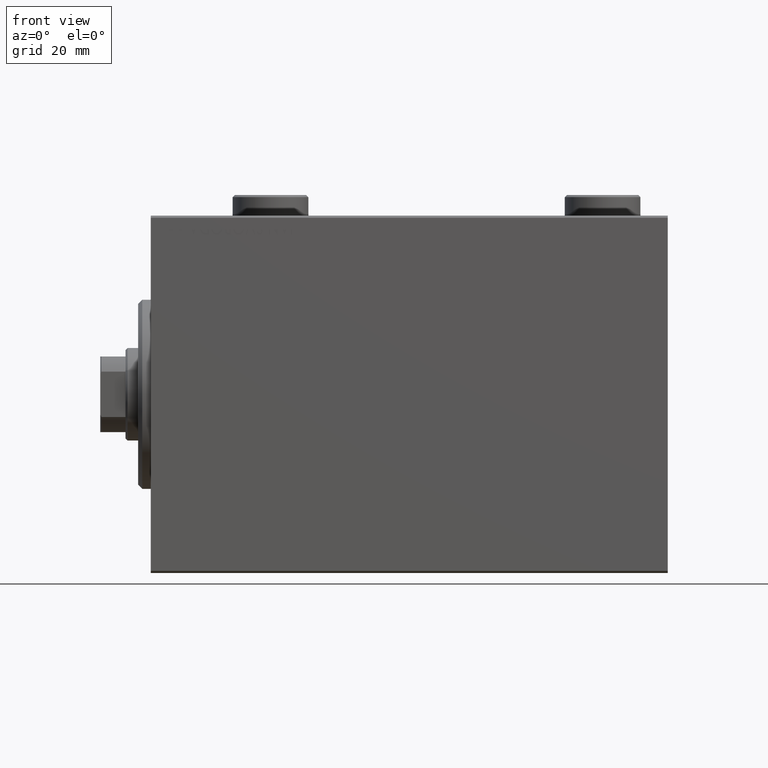
[diagram: clean part render]
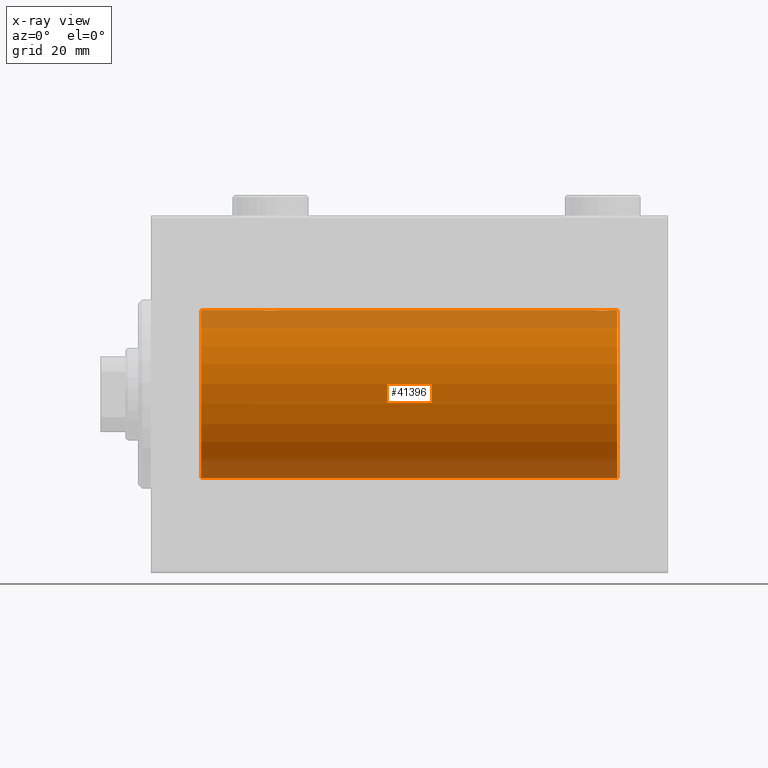
[diagram: x-ray — body ghosted, one internal face saturated and labeled with its STEP entity id]
A machine part, front view, then the same camera in x-ray: the body is ghosted and one INTERNAL B-rep face — a face not visible from any outside direction — is saturated and labeled: STEP entity #41396.
In plain terms, the highlighted cylindrical surface (partial cylindrical patch) has radius 20 mm, axis along (-1, -0, -0).
Its self-contained STEP definition (entity closure, byte-faithful):
#56 = CARTESIAN_POINT ( 'NONE',  ( 111.0000000000000000, 0.000000000000000000, 20.00000000000000000 ) ) ;
#267 = CARTESIAN_POINT ( 'NONE',  ( 30.24686976303072328, -1.008108445278687926, 19.97602680192586888 ) ) ;
#375 = ORIENTED_EDGE ( 'NONE', *, *, #854, .T. ) ;
#491 = EDGE_CURVE ( 'NONE', #2459, #32304, #43767, .T. ) ;
#728 = CARTESIAN_POINT ( 'NONE',  ( 30.49999999999999289, -0.2644051013330969702, 20.00000000000000711 ) ) ;
#854 = EDGE_CURVE ( 'NONE', #8564, #12379, #29098, .T. ) ;
#988 = CARTESIAN_POINT ( 'NONE',  ( 107.2364185590858483, -1.986835489085811979, 19.90108393514801222 ) ) ;
#1221 = CARTESIAN_POINT ( 'NONE',  ( 109.5000000000000284, -0.2644051013330989686, 20.00000000000000000 ) ) ;
#1376 = DIRECTION ( 'NONE',  ( -1.000000000000000000, -0.000000000000000000, -0.000000000000000000 ) ) ;
#2459 = VERTEX_POINT ( 'NONE', #56 ) ;
#2465 = CARTESIAN_POINT ( 'NONE',  ( 30.50000000000000000, 2.449293582768389958E-15, -20.00000000000000000 ) ) ;
#2564 = CARTESIAN_POINT ( 'NONE',  ( 111.0000000000000000, 0.000000000000000000, 0.000000000000000000 ) ) ;
#2623 = CARTESIAN_POINT ( 'NONE',  ( 29.50067219139244656, -1.736582545981375292, 19.92459705242981371 ) ) ;
#2887 = CARTESIAN_POINT ( 'NONE',  ( 30.50000000000000000, -4.014971335008767791E-15, 20.00000000000000000 ) ) ;
#2926 = CARTESIAN_POINT ( 'NONE',  ( 29.14630673924643744, -1.897222639860594029, -19.90987429971496780 ) ) ;
#2941 = VECTOR ( 'NONE', #35464, 1000.000000000000000 ) ;
#2988 = CARTESIAN_POINT ( 'NONE',  ( 30.50000000000000000, 2.449293582768389958E-15, -20.00000000000000000 ) ) ;
#3144 = CARTESIAN_POINT ( 'NONE',  ( 27.85651471266959334, -1.898187925611338533, -19.90978194174746818 ) ) ;
#3371 = CARTESIAN_POINT ( 'NONE',  ( 28.23922743968432059, -1.987205673487808966, -19.90104673894211018 ) ) ;
#3599 = CARTESIAN_POINT ( 'NONE',  ( 105.5000000000000000, -1.207436508668459186E-14, -20.00000000000000000 ) ) ;
#3603 = CARTESIAN_POINT ( 'NONE',  ( 27.61420923329272981, -1.797933656607917596, -19.91908554465558367 ) ) ;
#3737 = DIRECTION ( 'NONE',  ( -1.000000000000000000, -0.000000000000000000, -0.000000000000000000 ) ) ;
#3978 = CARTESIAN_POINT ( 'NONE',  ( 107.3694112828916474, -2.000100592782561471, -19.89973863218035888 ) ) ;
#4125 = ORIENTED_EDGE ( 'NONE', *, *, #12896, .F. ) ;
#4165 = VERTEX_POINT ( 'NONE', #2887 ) ;
#4207 = CARTESIAN_POINT ( 'NONE',  ( 107.2392274396843277, -1.987205673487818514, -19.90104673894210663 ) ) ;
#4217 = CARTESIAN_POINT ( 'NONE',  ( 111.0000000000000000, 2.449293598294706513E-15, -20.00000000000000000 ) ) ;
#4277 = B_SPLINE_CURVE_WITH_KNOTS ( 'NONE', 3,
 ( #20565, #27920, #17108, #12990, #31163, #13437, #30940, #41988, #20111, #16889, #34166, #10433, #35062, #45223, #13658, #37622, #37852, #6079, #2623, #16662, #30714, #41319, #267, #14325, #728, #7885 ),
 .UNSPECIFIED., .F., .F.,
 ( 4, 2, 2, 2, 2, 2, 2, 2, 2, 2, 2, 2, 4 ),
 ( 0.006256819553329811059, 0.007038738568778783733, 0.007820657584227756406, 0.008211617091952238406, 0.008602576599676722141, 0.008993536107401204141, 0.009384495615125686141, 0.009775455122850168141, 0.01016641463057465014, 0.01055737413829913214, 0.01094833364602361414, 0.01173025266147257814, 0.01251217167692154214 ),
 .UNSPECIFIED. ) ;
#4469 = CARTESIAN_POINT ( 'NONE',  ( 107.3663480385754809, -1.999898234284059884, 19.89975896996865501 ) ) ;
#4666 = LINE ( 'NONE', #11116, #37238 ) ;
#5477 = CARTESIAN_POINT ( 'NONE',  ( 30.09941524884030173, -1.228758402364235502, -19.96307487248084911 ) ) ;
#5802 = DIRECTION ( 'NONE',  ( -1.000000000000000000, -0.000000000000000000, -0.000000000000000000 ) ) ;
#6079 = CARTESIAN_POINT ( 'NONE',  ( 29.38579076670729151, -1.797933656607919817, 19.91908554465558367 ) ) ;
#6432 = CARTESIAN_POINT ( 'NONE',  ( 26.50000000000000355, -3.809869420541414000E-15, -20.00000000000000000 ) ) ;
#6825 = CARTESIAN_POINT ( 'NONE',  ( 28.36941128289166159, -2.000100592782553921, -19.89973863218036598 ) ) ;
#7049 = CARTESIAN_POINT ( 'NONE',  ( 27.17903093152710525, -1.507328959728492457, -19.94333197382385592 ) ) ;
#7203 = CARTESIAN_POINT ( 'NONE',  ( 109.0994152488403017, -1.228758402364235502, -19.96307487248084556 ) ) ;
#7455 = CARTESIAN_POINT ( 'NONE',  ( 106.8536932607535448, -1.897222639860596916, 19.90987429971497136 ) ) ;
#7657 = CARTESIAN_POINT ( 'NONE',  ( 107.6336519614244907, -1.999898234284069876, -19.89975896996865856 ) ) ;
#7666 = LINE ( 'NONE', #4217, #13104 ) ;
#7687 = CARTESIAN_POINT ( 'NONE',  ( 108.7180541947215033, -1.591668229360190034, 19.93669678979812332 ) ) ;
#7844 = VERTEX_POINT ( 'NONE', #3599 ) ;
#7885 = CARTESIAN_POINT ( 'NONE',  ( 30.50000000000000000, -4.014971335008767791E-15, 20.00000000000000000 ) ) ;
#7921 = CARTESIAN_POINT ( 'NONE',  ( 109.4467948419179777, -0.5270924491156657732, 19.99450181871976540 ) ) ;
#8151 = CARTESIAN_POINT ( 'NONE',  ( 105.5000000000000426, -0.2610801504281927699, 20.00000000000000000 ) ) ;
#8564 = VERTEX_POINT ( 'NONE', #2988 ) ;
#8939 = CARTESIAN_POINT ( 'NONE',  ( 30.44755062882508412, -0.5243189001514996228, -19.99457699142849876 ) ) ;
#9237 = VERTEX_POINT ( 'NONE', #23542 ) ;
#9931 = FACE_OUTER_BOUND ( 'NONE', #16829, .T. ) ;
#10433 = CARTESIAN_POINT ( 'NONE',  ( 28.23641855908585541, -1.986835489085814643, 19.90108393514801222 ) ) ;
#10500 = CARTESIAN_POINT ( 'NONE',  ( 26.50000000000000355, -3.809869420541414000E-15, -20.00000000000000000 ) ) ;
#10855 = ORIENTED_EDGE ( 'NONE', *, *, #43214, .T. ) ;
#11109 = CARTESIAN_POINT ( 'NONE',  ( 106.6142092332927120, -1.797933656607926922, -19.91908554465557657 ) ) ;
#11116 = CARTESIAN_POINT ( 'NONE',  ( 111.0000000000000000, 0.000000000000000000, 20.00000000000000000 ) ) ;
#11430 = CARTESIAN_POINT ( 'NONE',  ( 111.0000000000000000, 0.000000000000000000, 0.000000000000000000 ) ) ;
#11601 = CARTESIAN_POINT ( 'NONE',  ( 108.3857907667073022, -1.797933656607911379, 19.91908554465557657 ) ) ;
#11829 = LINE ( 'NONE', #18719, #14551 ) ;
#12379 = VERTEX_POINT ( 'NONE', #6432 ) ;
#12720 = ORIENTED_EDGE ( 'NONE', *, *, #37078, .T. ) ;
#12896 = EDGE_CURVE ( 'NONE', #17816, #41855, #11829, .T. ) ;
#12990 = CARTESIAN_POINT ( 'NONE',  ( 26.75174086539981033, -1.005710574260841206, 19.97614991974274190 ) ) ;
#13104 = VECTOR ( 'NONE', #18247, 1000.000000000000000 ) ;
#13437 = CARTESIAN_POINT ( 'NONE',  ( 27.17693331080528907, -1.505486175075773758, 19.94347168299867690 ) ) ;
#13658 = CARTESIAN_POINT ( 'NONE',  ( 28.76077256031567586, -1.987205673487810298, 19.90104673894210663 ) ) ;
#13730 = CARTESIAN_POINT ( 'NONE',  ( 28.63365196142448355, -1.999898234284062992, -19.89975896996866211 ) ) ;
#14099 = CARTESIAN_POINT ( 'NONE',  ( 107.7635814409142085, -1.986835489085821527, -19.90108393514801932 ) ) ;
#14325 = CARTESIAN_POINT ( 'NONE',  ( 30.44679484191797414, -0.5270924491156706582, 19.99450181871975829 ) ) ;
#14551 = VECTOR ( 'NONE', #32078, 1000.000000000000000 ) ;
#14555 = CARTESIAN_POINT ( 'NONE',  ( 105.9022530844526813, -1.230936344679284256, -19.96293863536309487 ) ) ;
#14781 = CARTESIAN_POINT ( 'NONE',  ( 105.7531302369692696, -1.008108445278694143, -19.97602680192586178 ) ) ;
#14812 = CARTESIAN_POINT ( 'NONE',  ( 106.1769333108053388, -1.505486175075770428, 19.94347168299868045 ) ) ;
#15006 = CARTESIAN_POINT ( 'NONE',  ( 105.5000000000000000, -0.2644051013331136235, -20.00000000000000000 ) ) ;
#15037 = CARTESIAN_POINT ( 'NONE',  ( 109.2468697630307162, -1.008108445278682153, 19.97602680192586533 ) ) ;
#16640 = ORIENTED_EDGE ( 'NONE', *, *, #23390, .T. ) ;
#16662 = CARTESIAN_POINT ( 'NONE',  ( 29.71805419472152110, -1.591668229360196252, 19.93669678979812332 ) ) ;
#16829 = EDGE_LOOP ( 'NONE', ( #21368, #12720, #16640, #45369, #375, #10855, #17694, #4125, #32863, #26663, #38652, #26646 ) ) ;
#16889 = CARTESIAN_POINT ( 'NONE',  ( 27.85369326075355545, -1.897222639860597360, 19.90987429971497491 ) ) ;
#16959 = CARTESIAN_POINT ( 'NONE',  ( 26.50000000000001066, -0.2644051013331030209, -20.00000000000000355 ) ) ;
#17108 = CARTESIAN_POINT ( 'NONE',  ( 26.55244937117492299, -0.5243189001515023984, 19.99457699142850586 ) ) ;
#17627 = CARTESIAN_POINT ( 'NONE',  ( 27.49932780860757475, -1.736582545981376180, -19.92459705242981371 ) ) ;
#17694 = ORIENTED_EDGE ( 'NONE', *, *, #37193, .T. ) ;
#17816 = VERTEX_POINT ( 'NONE', #19259 ) ;
#17883 = CARTESIAN_POINT ( 'NONE',  ( 109.5000000000000000, 9.933581297041049549E-16, 20.00000000000000000 ) ) ;
#18034 = CARTESIAN_POINT ( 'NONE',  ( 105.9005847511597125, -1.228758402364233948, 19.96307487248084911 ) ) ;
#18089 = B_SPLINE_CURVE_WITH_KNOTS ( 'NONE', 3,
 ( #39707, #8151, #39011, #36231, #18034, #14812, #42702, #21951, #28858, #7455, #36008, #988, #4469, #22175, #39471, #21714, #43156, #11601, #28404, #7687, #25395, #35777, #15037, #7921, #1221, #18488 ),
 .UNSPECIFIED., .F., .F.,
 ( 4, 2, 2, 2, 2, 2, 2, 2, 2, 2, 2, 2, 4 ),
 ( 0.006256819553329836213, 0.007038738568778807152, 0.007820657584227777223, 0.008211617091952262693, 0.008602576599676746427, 0.008993536107401231897, 0.009384495615125717366, 0.009775455122850201101, 0.01016641463057468657, 0.01055737413829917204, 0.01094833364602365577, 0.01173025266147262498, 0.01251217167692159418 ),
 .UNSPECIFIED. ) ;
#18247 = DIRECTION ( 'NONE',  ( -1.000000000000000000, -0.000000000000000000, -0.000000000000000000 ) ) ;
#18488 = CARTESIAN_POINT ( 'NONE',  ( 109.5000000000000000, 9.933581297041049549E-16, 20.00000000000000000 ) ) ;
#18692 = CARTESIAN_POINT ( 'NONE',  ( 106.9835146708109477, -1.936551476643014968, -19.90603968831098669 ) ) ;
#18719 = CARTESIAN_POINT ( 'NONE',  ( 111.0000000000000000, 0.000000000000000000, 20.00000000000000000 ) ) ;
#19259 = CARTESIAN_POINT ( 'NONE',  ( 26.50000000000000355, -1.552596590610734385E-23, 20.00000000000000000 ) ) ;
#19503 = CARTESIAN_POINT ( 'NONE',  ( 29.82306668919470383, -1.505486175075772870, -19.94347168299867334 ) ) ;
#20111 = CARTESIAN_POINT ( 'NONE',  ( 27.61170562792909422, -1.796691196322319994, 19.91919800395357143 ) ) ;
#20354 = CIRCLE ( 'NONE', #39499, 20.00000000000000000 ) ;
#20409 = CARTESIAN_POINT ( 'NONE',  ( 27.98351467081095123, -1.936551476643005198, -19.90603968831098314 ) ) ;
#20565 = CARTESIAN_POINT ( 'NONE',  ( 26.50000000000000355, -1.552596590610734385E-23, 20.00000000000000000 ) ) ;
#21077 = CARTESIAN_POINT ( 'NONE',  ( 26.75313023696928738, -1.008108445278687704, -19.97602680192586533 ) ) ;
#21235 = CARTESIAN_POINT ( 'NONE',  ( 108.7202894579446593, -1.589957321664212886, -19.93683391378736047 ) ) ;
#21368 = ORIENTED_EDGE ( 'NONE', *, *, #30052, .F. ) ;
#21453 = CARTESIAN_POINT ( 'NONE',  ( 109.5000000000000000, -0.2610801504281911600, -19.99999999999999645 ) ) ;
#21682 = CARTESIAN_POINT ( 'NONE',  ( 106.4993278086075463, -1.736582545981379289, -19.92459705242981016 ) ) ;
#21714 = CARTESIAN_POINT ( 'NONE',  ( 108.0164853291890665, -1.936551476643001646, 19.90603968831098669 ) ) ;
#21919 = CARTESIAN_POINT ( 'NONE',  ( 105.5000000000000000, -1.207436508668459186E-14, -20.00000000000000000 ) ) ;
#21928 = DIRECTION ( 'NONE',  ( -1.000000000000000000, -0.000000000000000000, -0.000000000000000000 ) ) ;
#21951 = CARTESIAN_POINT ( 'NONE',  ( 106.4969344366039792, -1.735203193119890352, 19.92471783160911158 ) ) ;
#22147 = CARTESIAN_POINT ( 'NONE',  ( 109.4475506288250983, -0.5243189001514979575, -19.99457699142850231 ) ) ;
#22175 = CARTESIAN_POINT ( 'NONE',  ( 107.6305887171083668, -2.000100592782551701, 19.89973863218036598 ) ) ;
#23351 = EDGE_CURVE ( 'NONE', #17816, #4165, #4277, .T. ) ;
#23390 = EDGE_CURVE ( 'NONE', #9237, #7844, #39423, .T. ) ;
#23542 = CARTESIAN_POINT ( 'NONE',  ( 109.5000000000000000, 2.449293582762473501E-15, -20.00000000000000000 ) ) ;
#24097 = VERTEX_POINT ( 'NONE', #30900 ) ;
#24312 = CARTESIAN_POINT ( 'NONE',  ( 29.50306556339602437, -1.735203193119894349, -19.92471783160910803 ) ) ;
#24916 = CARTESIAN_POINT ( 'NONE',  ( 106.8565147126695933, -1.898187925611348081, -19.90978194174746463 ) ) ;
#25136 = CARTESIAN_POINT ( 'NONE',  ( 108.5030655633960208, -1.735203193119900344, -19.92471783160911514 ) ) ;
#25395 = CARTESIAN_POINT ( 'NONE',  ( 108.8209690684728912, -1.507328959728487794, 19.94333197382385592 ) ) ;
#25458 = DIRECTION ( 'NONE',  ( -1.000000000000000000, 0.000000000000000000, 0.000000000000000000 ) ) ;
#26646 = ORIENTED_EDGE ( 'NONE', *, *, #491, .F. ) ;
#26663 = ORIENTED_EDGE ( 'NONE', *, *, #27592, .F. ) ;
#26902 = VERTEX_POINT ( 'NONE', #26921 ) ;
#26921 = CARTESIAN_POINT ( 'NONE',  ( 111.0000000000000000, 2.449293598294706513E-15, -20.00000000000000000 ) ) ;
#27320 = CARTESIAN_POINT ( 'NONE',  ( 29.72028945794465571, -1.589957321664208223, -19.93683391378736047 ) ) ;
#27592 = EDGE_CURVE ( 'NONE', #43856, #4165, #4666, .T. ) ;
#27768 = CARTESIAN_POINT ( 'NONE',  ( 29.38829437207091999, -1.796691196322316664, -19.91919800395357143 ) ) ;
#27882 = DIRECTION ( 'NONE',  ( -1.000000000000000000, 0.000000000000000000, 0.000000000000000000 ) ) ;
#27920 = CARTESIAN_POINT ( 'NONE',  ( 26.50000000000000711, -0.2610801504281929919, 20.00000000000000000 ) ) ;
#28140 = CARTESIAN_POINT ( 'NONE',  ( 109.5000000000000000, 2.449293582762473501E-15, -20.00000000000000000 ) ) ;
#28404 = CARTESIAN_POINT ( 'NONE',  ( 108.5006721913924395, -1.736582545981369741, 19.92459705242980661 ) ) ;
#28858 = CARTESIAN_POINT ( 'NONE',  ( 106.6117056279291120, -1.796691196322320438, 19.91919800395357143 ) ) ;
#29058 = CARTESIAN_POINT ( 'NONE',  ( 106.1790309315270804, -1.507328959728499118, -19.94333197382385947 ) ) ;
#29098 = B_SPLINE_CURVE_WITH_KNOTS ( 'NONE', 3,
 ( #2465, #40497, #8939, #37016, #5477, #19503, #27320, #24312, #27768, #2926, #38155, #45526, #13730, #6825, #3371, #20409, #3144, #3603, #17627, #35134, #7049, #42054, #21077, #38595, #16959, #10500 ),
 .UNSPECIFIED., .F., .F.,
 ( 4, 2, 2, 2, 2, 2, 2, 2, 2, 2, 2, 2, 4 ),
 ( 0.006256819553329842284, 0.007038738568778818427, 0.007820657584227792836, 0.008211617091952278305, 0.008602576599676762040, 0.008993536107401245774, 0.009384495615125729509, 0.009775455122850213244, 0.01016641463057469871, 0.01055737413829918071, 0.01094833364602366618, 0.01173025266147263365, 0.01251217167692159939 ),
 .UNSPECIFIED. ) ;
#29242 = CARTESIAN_POINT ( 'NONE',  ( 111.0000000000000000, 0.000000000000000000, 20.00000000000000000 ) ) ;
#30052 = EDGE_CURVE ( 'NONE', #26902, #2459, #20354, .T. ) ;
#30424 = VECTOR ( 'NONE', #1376, 1000.000000000000000 ) ;
#30714 = CARTESIAN_POINT ( 'NONE',  ( 29.82096906847289119, -1.507328959728493567, 19.94333197382385592 ) ) ;
#30900 = CARTESIAN_POINT ( 'NONE',  ( 11.99999999999999645, 2.449293598294706513E-15, -20.00000000000000000 ) ) ;
#30940 = CARTESIAN_POINT ( 'NONE',  ( 27.27971054205535850, -1.589957321664211998, 19.93683391378736047 ) ) ;
#31119 = CARTESIAN_POINT ( 'NONE',  ( 11.99999999999999645, 0.000000000000000000, 0.000000000000000000 ) ) ;
#31163 = CARTESIAN_POINT ( 'NONE',  ( 26.90058475115969827, -1.228758402364236391, 19.96307487248084556 ) ) ;
#31659 = VECTOR ( 'NONE', #3737, 1000.000000000000000 ) ;
#32054 = CARTESIAN_POINT ( 'NONE',  ( 106.2819458052784825, -1.591668229360199804, -19.93669678979812687 ) ) ;
#32078 = DIRECTION ( 'NONE',  ( -1.000000000000000000, -0.000000000000000000, -0.000000000000000000 ) ) ;
#32304 = VERTEX_POINT ( 'NONE', #17883 ) ;
#32863 = ORIENTED_EDGE ( 'NONE', *, *, #23351, .T. ) ;
#33888 = DIRECTION ( 'NONE',  ( 0.000000000000000000, 0.000000000000000000, 1.000000000000000000 ) ) ;
#33942 = CARTESIAN_POINT ( 'NONE',  ( 11.99999999999999645, 0.000000000000000000, 20.00000000000000000 ) ) ;
#34166 = CARTESIAN_POINT ( 'NONE',  ( 27.98076487864722495, -1.935816449315125087, 19.90611141657401362 ) ) ;
#35062 = CARTESIAN_POINT ( 'NONE',  ( 28.36634803857552001, -1.999898234284063436, 19.89975896996866211 ) ) ;
#35134 = CARTESIAN_POINT ( 'NONE',  ( 27.28194580527848601, -1.591668229360197140, -19.93669678979812332 ) ) ;
#35144 = AXIS2_PLACEMENT_3D ( 'NONE', #31119, #27882, #38485 ) ;
#35156 = CARTESIAN_POINT ( 'NONE',  ( 105.5000000000000000, -1.553188236289650144E-23, 20.00000000000000000 ) ) ;
#35464 = DIRECTION ( 'NONE',  ( -1.000000000000000000, -0.000000000000000000, -0.000000000000000000 ) ) ;
#35512 = CARTESIAN_POINT ( 'NONE',  ( 108.1463067392464268, -1.897222639860602245, -19.90987429971496425 ) ) ;
#35777 = CARTESIAN_POINT ( 'NONE',  ( 109.0977469155473187, -1.230936344679272931, 19.96293863536309132 ) ) ;
#36008 = CARTESIAN_POINT ( 'NONE',  ( 106.9807648786472498, -1.935816449315123533, 19.90611141657401717 ) ) ;
#36199 = CARTESIAN_POINT ( 'NONE',  ( 108.3882943720709591, -1.796691196322323769, -19.91919800395357498 ) ) ;
#36231 = CARTESIAN_POINT ( 'NONE',  ( 105.7517408653998388, -1.005710574260843426, 19.97614991974273835 ) ) ;
#36296 = DIRECTION ( 'NONE',  ( 0.000000000000000000, 0.000000000000000000, 1.000000000000000000 ) ) ;
#37016 = CARTESIAN_POINT ( 'NONE',  ( 30.24825913460018612, -1.005710574260838985, -19.97614991974274190 ) ) ;
#37078 = EDGE_CURVE ( 'NONE', #26902, #9237, #7666, .T. ) ;
#37115 = CYLINDRICAL_SURFACE ( 'NONE', #41187, 20.00000000000000000 ) ;
#37193 = EDGE_CURVE ( 'NONE', #24097, #41855, #39595, .T. ) ;
#37238 = VECTOR ( 'NONE', #21928, 1000.000000000000000 ) ;
#37622 = CARTESIAN_POINT ( 'NONE',  ( 29.01648532918905943, -1.936551476643006753, 19.90603968831098669 ) ) ;
#37852 = CARTESIAN_POINT ( 'NONE',  ( 29.14348528733041377, -1.898187925611340088, 19.90978194174746818 ) ) ;
#38065 = LINE ( 'NONE', #42427, #31659 ) ;
#38155 = CARTESIAN_POINT ( 'NONE',  ( 29.01923512135276795, -1.935816449315124643, -19.90611141657401717 ) ) ;
#38485 = DIRECTION ( 'NONE',  ( 0.000000000000000000, 0.000000000000000000, 1.000000000000000000 ) ) ;
#38595 = CARTESIAN_POINT ( 'NONE',  ( 26.55320515808203297, -0.5270924491156698810, -19.99450181871976184 ) ) ;
#38652 = ORIENTED_EDGE ( 'NONE', *, *, #43510, .T. ) ;
#38981 = CARTESIAN_POINT ( 'NONE',  ( 108.0192351213527786, -1.935816449315129306, -19.90611141657401006 ) ) ;
#39011 = CARTESIAN_POINT ( 'NONE',  ( 105.5524493711749159, -0.5243189001515050629, 19.99457699142850586 ) ) ;
#39208 = CARTESIAN_POINT ( 'NONE',  ( 109.2482591346001897, -1.005710574260839207, -19.97614991974273835 ) ) ;
#39423 = B_SPLINE_CURVE_WITH_KNOTS ( 'NONE', 3,
 ( #28140, #21453, #22147, #39208, #7203, #42215, #21235, #25136, #36199, #35512, #38981, #14099, #7657, #3978, #4207, #18692, #24916, #11109, #21682, #32054, #29058, #14555, #14781, #43127, #15006, #21919 ),
 .UNSPECIFIED., .F., .F.,
 ( 4, 2, 2, 2, 2, 2, 2, 2, 2, 2, 2, 2, 4 ),
 ( 0.006256819553329824070, 0.007038738568778772457, 0.007820657584227721712, 0.008211617091952210651, 0.008602576599676697855, 0.008993536107401188529, 0.009384495615125675733, 0.009775455122850164671, 0.01016641463057465361, 0.01055737413829914428, 0.01094833364602363149, 0.01173025266147260937, 0.01251217167692158724 ),
 .UNSPECIFIED. ) ;
#39471 = CARTESIAN_POINT ( 'NONE',  ( 107.7607725603156865, -1.987205673487806967, 19.90104673894211018 ) ) ;
#39499 = AXIS2_PLACEMENT_3D ( 'NONE', #11430, #25458, #36296 ) ;
#39595 = CIRCLE ( 'NONE', #35144, 20.00000000000000000 ) ;
#39707 = CARTESIAN_POINT ( 'NONE',  ( 105.5000000000000000, -1.553188236289650144E-23, 20.00000000000000000 ) ) ;
#40497 = CARTESIAN_POINT ( 'NONE',  ( 30.49999999999999645, -0.2610801504281900498, -19.99999999999999645 ) ) ;
#41187 = AXIS2_PLACEMENT_3D ( 'NONE', #2564, #5802, #33888 ) ;
#41319 = CARTESIAN_POINT ( 'NONE',  ( 30.09774691554730097, -1.230936344679278482, 19.96293863536309132 ) ) ;
#41396 = ADVANCED_FACE ( 'NONE', ( #9931 ), #37115, .F. ) ;
#41855 = VERTEX_POINT ( 'NONE', #33942 ) ;
#41943 = CARTESIAN_POINT ( 'NONE',  ( 111.0000000000000000, 2.449293598294706513E-15, -20.00000000000000000 ) ) ;
#41988 = CARTESIAN_POINT ( 'NONE',  ( 27.49693443660397918, -1.735203193119897902, 19.92471783160911158 ) ) ;
#42054 = CARTESIAN_POINT ( 'NONE',  ( 26.90225308445269903, -1.230936344679278260, -19.96293863536309132 ) ) ;
#42215 = CARTESIAN_POINT ( 'NONE',  ( 108.8230666891947180, -1.505486175075774646, -19.94347168299868045 ) ) ;
#42378 = EDGE_CURVE ( 'NONE', #7844, #8564, #42394, .T. ) ;
#42394 = LINE ( 'NONE', #41943, #2941 ) ;
#42427 = CARTESIAN_POINT ( 'NONE',  ( 111.0000000000000000, 2.449293598294706513E-15, -20.00000000000000000 ) ) ;
#42702 = CARTESIAN_POINT ( 'NONE',  ( 106.2797105420553692, -1.589957321664204448, 19.93683391378736403 ) ) ;
#43127 = CARTESIAN_POINT ( 'NONE',  ( 105.5532051580820649, -0.5270924491156777636, -19.99450181871976540 ) ) ;
#43156 = CARTESIAN_POINT ( 'NONE',  ( 108.1434852873303925, -1.898187925611333871, 19.90978194174746463 ) ) ;
#43214 = EDGE_CURVE ( 'NONE', #12379, #24097, #38065, .T. ) ;
#43510 = EDGE_CURVE ( 'NONE', #43856, #32304, #18089, .T. ) ;
#43767 = LINE ( 'NONE', #29242, #30424 ) ;
#43856 = VERTEX_POINT ( 'NONE', #35156 ) ;
#45223 = CARTESIAN_POINT ( 'NONE',  ( 28.63058871710834552, -2.000100592782553921, 19.89973863218035888 ) ) ;
#45369 = ORIENTED_EDGE ( 'NONE', *, *, #42378, .T. ) ;
#45526 = CARTESIAN_POINT ( 'NONE',  ( 28.76358144091416236, -1.986835489085814199, -19.90108393514801222 ) ) ;